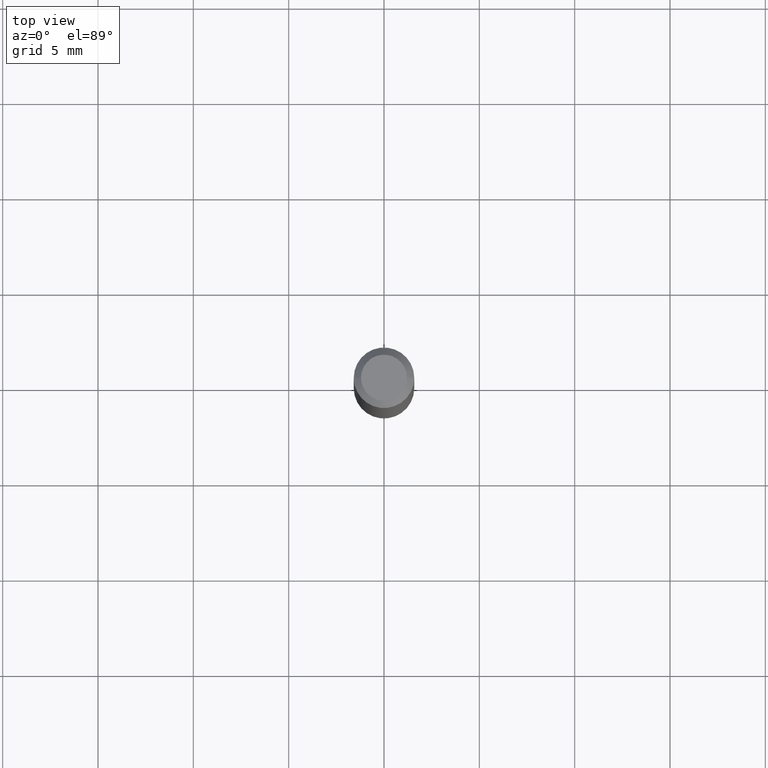
[diagram: clean part render]
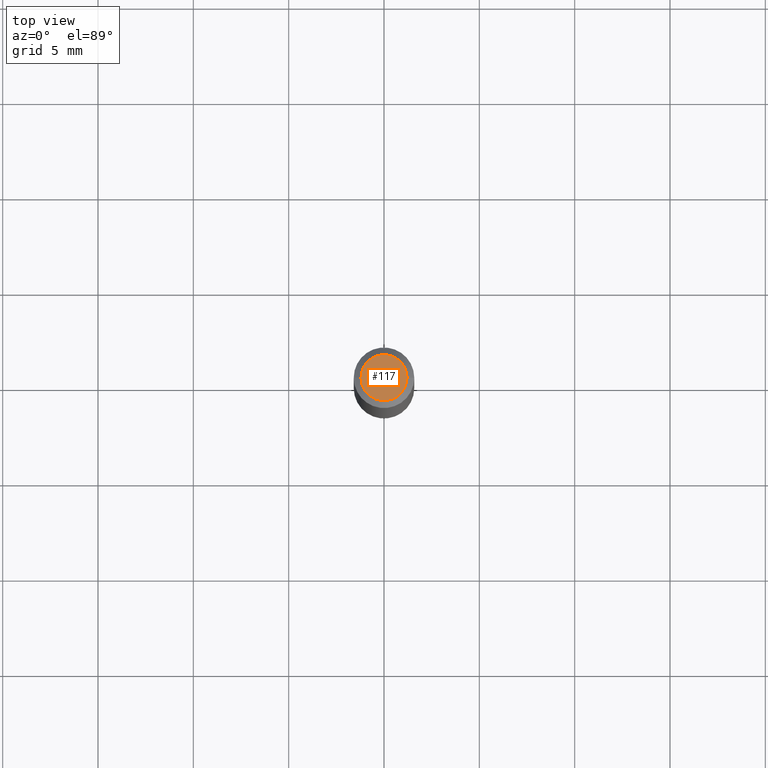
[diagram: same view with one face highlighted and labeled with its STEP entity id]
A machine part, top view. The second image highlights one B-rep face of the part: STEP entity #117.
In plain terms, the highlighted planar face has unit normal (0, -0, -1).
Its self-contained STEP definition (entity closure, byte-faithful):
#30 = CARTESIAN_POINT ( 'NONE',  ( 3.869415696791911762E-44, -5.524500113600271674E-30, -1.582279719538967596E-15 ) ) ;
#33 = DIRECTION ( 'NONE',  ( -2.445468806185136597E-29, 3.491481338843145583E-15, 1.000000000000000000 ) ) ;
#37 = EDGE_CURVE ( 'NONE', #99, #88, #364, .T. ) ;
#44 = CARTESIAN_POINT ( 'NONE',  ( 3.869415696791911762E-44, -5.524500113600271674E-30, -1.582279719538967596E-15 ) ) ;
#67 = AXIS2_PLACEMENT_3D ( 'NONE', #30, #33, #177 ) ;
#87 = PLANE ( 'NONE',  #236 ) ;
#88 = VERTEX_POINT ( 'NONE', #299 ) ;
#94 = ORIENTED_EDGE ( 'NONE', *, *, #325, .T. ) ;
#99 = VERTEX_POINT ( 'NONE', #234 ) ;
#117 = ADVANCED_FACE ( 'NONE', ( #194 ), #87, .F. ) ;
#154 = ORIENTED_EDGE ( 'NONE', *, *, #37, .T. ) ;
#177 = DIRECTION ( 'NONE',  ( 1.000000000000000000, -6.982962677686267499E-15, 5.108144071313017768E-29 ) ) ;
#194 = FACE_OUTER_BOUND ( 'NONE', #274, .T. ) ;
#230 = DIRECTION ( 'NONE',  ( 1.000000000000000000, -6.982962677686267499E-15, 5.108144071313017768E-29 ) ) ;
#234 = CARTESIAN_POINT ( 'NONE',  ( 0.04749999999999999362, -4.035134999187605740E-16, -1.582279719538965032E-15 ) ) ;
#236 = AXIS2_PLACEMENT_3D ( 'NONE', #433, #366, #257 ) ;
#257 = DIRECTION ( 'NONE',  ( -1.000000000000000000, 6.982962677686265922E-15, -4.876176775795935793E-29 ) ) ;
#274 = EDGE_LOOP ( 'NONE', ( #94, #154 ) ) ;
#286 = AXIS2_PLACEMENT_3D ( 'NONE', #44, #425, #230 ) ;
#299 = CARTESIAN_POINT ( 'NONE',  ( -0.04749999999999999362, 3.578768372314182896E-16, -1.582279719538970160E-15 ) ) ;
#325 = EDGE_CURVE ( 'NONE', #88, #99, #341, .T. ) ;
#341 = CIRCLE ( 'NONE', #67, 0.04749999999999999362 ) ;
#364 = CIRCLE ( 'NONE', #286, 0.04749999999999999362 ) ;
#366 = DIRECTION ( 'NONE',  ( 2.438088387897960049E-29, -3.491481338843145188E-15, -1.000000000000000000 ) ) ;
#425 = DIRECTION ( 'NONE',  ( -2.445468806185136597E-29, 3.491481338843145583E-15, 1.000000000000000000 ) ) ;
#433 = CARTESIAN_POINT ( 'NONE',  ( 3.316907271900976096E-16, 0.04749999999999999362, -9.569852233645332438E-16 ) ) ;